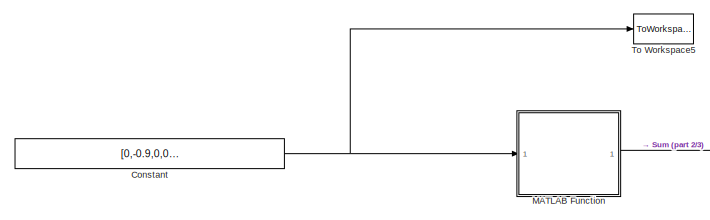
[diagram: root canvas - part 1/3, top center region]
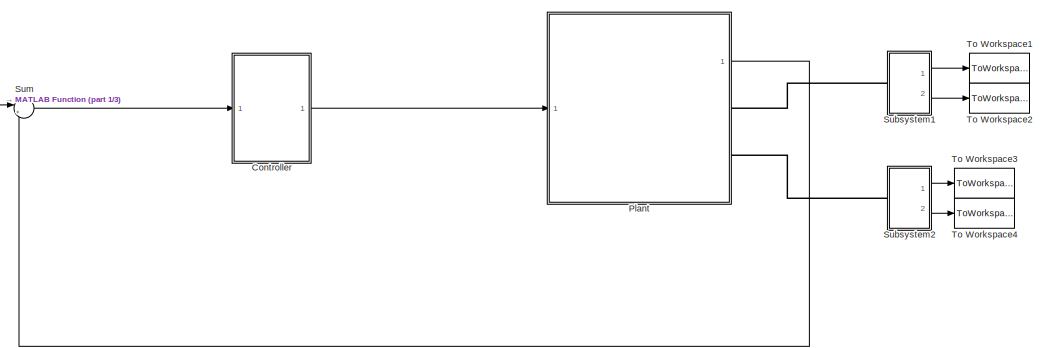
[diagram: root canvas - part 2/3, middle right region]
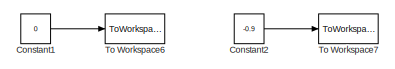
[diagram: root canvas - part 3/3, bottom left region]
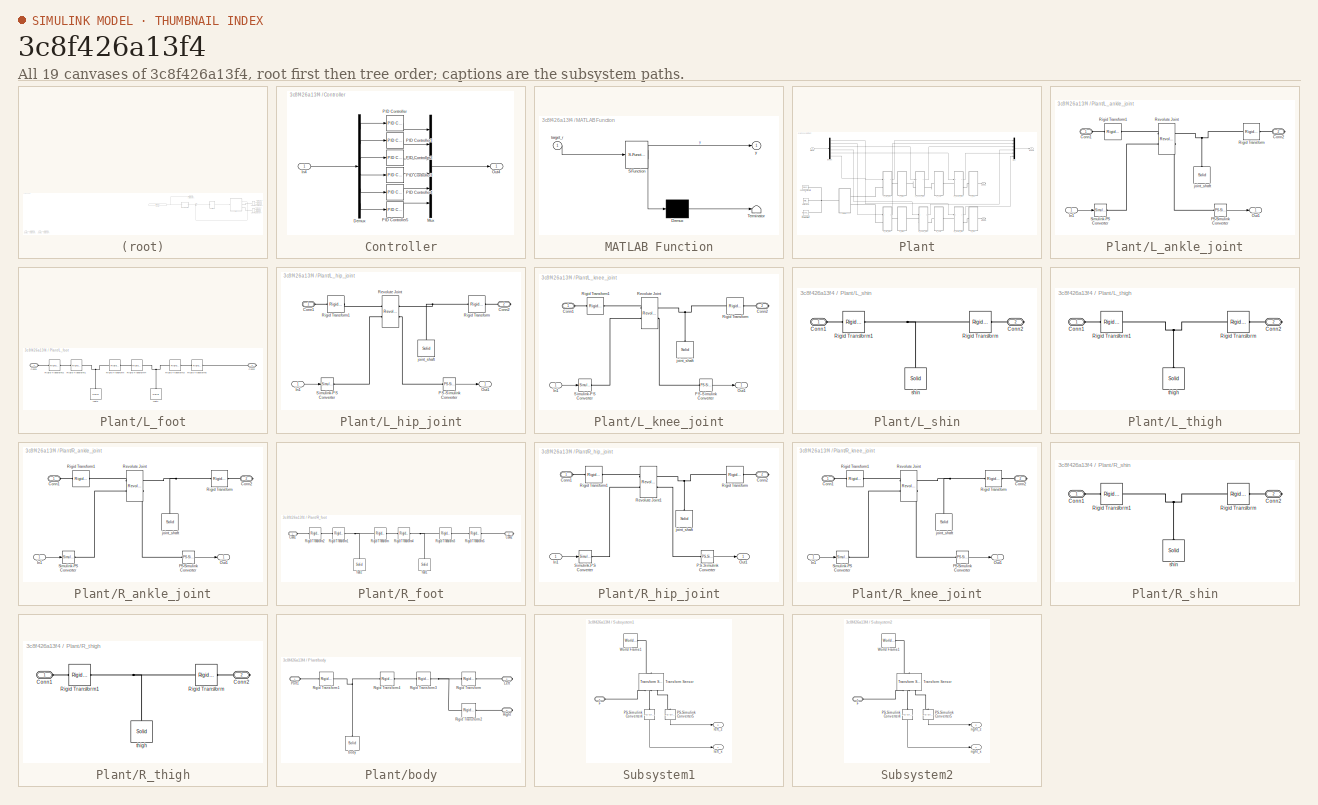
[diagram: thumbnail index - all 19 canvases of the model, root first then tree order]
MODEL slx_3c8f426a13f4
KIND model
CONFIG AbsTol = auto
CONFIG EnableMultiTasking = off
CONFIG FixedStep = auto
CONFIG MaxStep = auto
CONFIG MinStep = auto
CONFIG RelTol = 1e-3
CONFIG SampleTimeConstraint = Unconstrained
CONFIG Solver = VariableStepAuto
CONFIG SolverName = VariableStepAuto
CONFIG StartTime = 0.0
CONFIG StopTime = 5
BLOCK [Constant] Constant
  Value = [0,-0.9,0,0,-0.9,0]
BLOCK [Constant] Constant1
  Value = 0
BLOCK [Constant] Constant2
  Value = -0.9
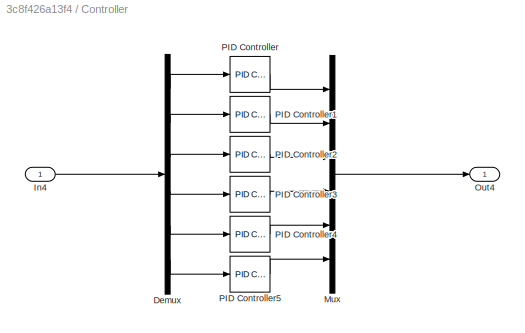
BLOCK [SubSystem] Controller
  Ports = [1, 1]
  RequestExecContextInheritance = off
BLOCK [Demux] Controller/Demux
  DisplayOption = bar
  Outputs = 6
  Ports = [1, 6]
BLOCK [Inport] Controller/In4
  IconDisplay = Port number
BLOCK [Mux] Controller/Mux
  DisplayOption = bar
  Inputs = 6
  Ports = [6, 1]
BLOCK [Outport] Controller/Out4
  IconDisplay = Port number
BLOCK [Reference] Controller/PID Controller  REF=simulink/Continuous/PID Controller
  Ports = [1, 1]
  SourceBlock = simulink/Continuous/PID Controller
  SourceProductBaseCode = SL
  SourceProductName = Simulink
  SourceType = PID 1dof
BLOCK [Reference] Controller/PID Controller1  REF=simulink/Continuous/PID Controller
  Ports = [1, 1]
  SourceBlock = simulink/Continuous/PID Controller
  SourceProductBaseCode = SL
  SourceProductName = Simulink
  SourceType = PID 1dof
BLOCK [Reference] Controller/PID Controller2  REF=simulink/Continuous/PID Controller
  Ports = [1, 1]
  SourceBlock = simulink/Continuous/PID Controller
  SourceProductBaseCode = SL
  SourceProductName = Simulink
  SourceType = PID 1dof
BLOCK [Reference] Controller/PID Controller3  REF=simulink/Continuous/PID Controller
  Ports = [1, 1]
  SourceBlock = simulink/Continuous/PID Controller
  SourceProductBaseCode = SL
  SourceProductName = Simulink
  SourceType = PID 1dof
BLOCK [Reference] Controller/PID Controller4  REF=simulink/Continuous/PID Controller
  Ports = [1, 1]
  SourceBlock = simulink/Continuous/PID Controller
  SourceProductBaseCode = SL
  SourceProductName = Simulink
  SourceType = PID 1dof
BLOCK [Reference] Controller/PID Controller5  REF=simulink/Continuous/PID Controller
  Ports = [1, 1]
  SourceBlock = simulink/Continuous/PID Controller
  SourceProductBaseCode = SL
  SourceProductName = Simulink
  SourceType = PID 1dof
BLOCK [SubSystem] MATLAB Function
  ErrorFcn = Stateflow.Translate.translate
  PermitHierarchicalResolution = ExplicitOnly
  Ports = [1, 1]
  RequestExecContextInheritance = off
  SFBlockType = MATLAB Function
  TreatAsAtomicUnit = on
BLOCK [Demux] MATLAB Function/ Demux 
  Outputs = 1
  Ports = [1, 1]
BLOCK [S-Function] MATLAB Function/ SFunction 
  EnableBusSupport = on
  FunctionName = sf_sfun
  PortCounts = [1 2]
  Ports = [1, 2]
  SFcnIsStateOwnerBlock = off
  SFunctionDeploymentMode = off
  Tag = Stateflow S-Function Twoleg_Sim 2
BLOCK [Terminator] MATLAB Function/ Terminator 
BLOCK [Inport] MATLAB Function/target_r
  IconDisplay = Port number
BLOCK [Outport] MATLAB Function/y
  IconDisplay = Port number
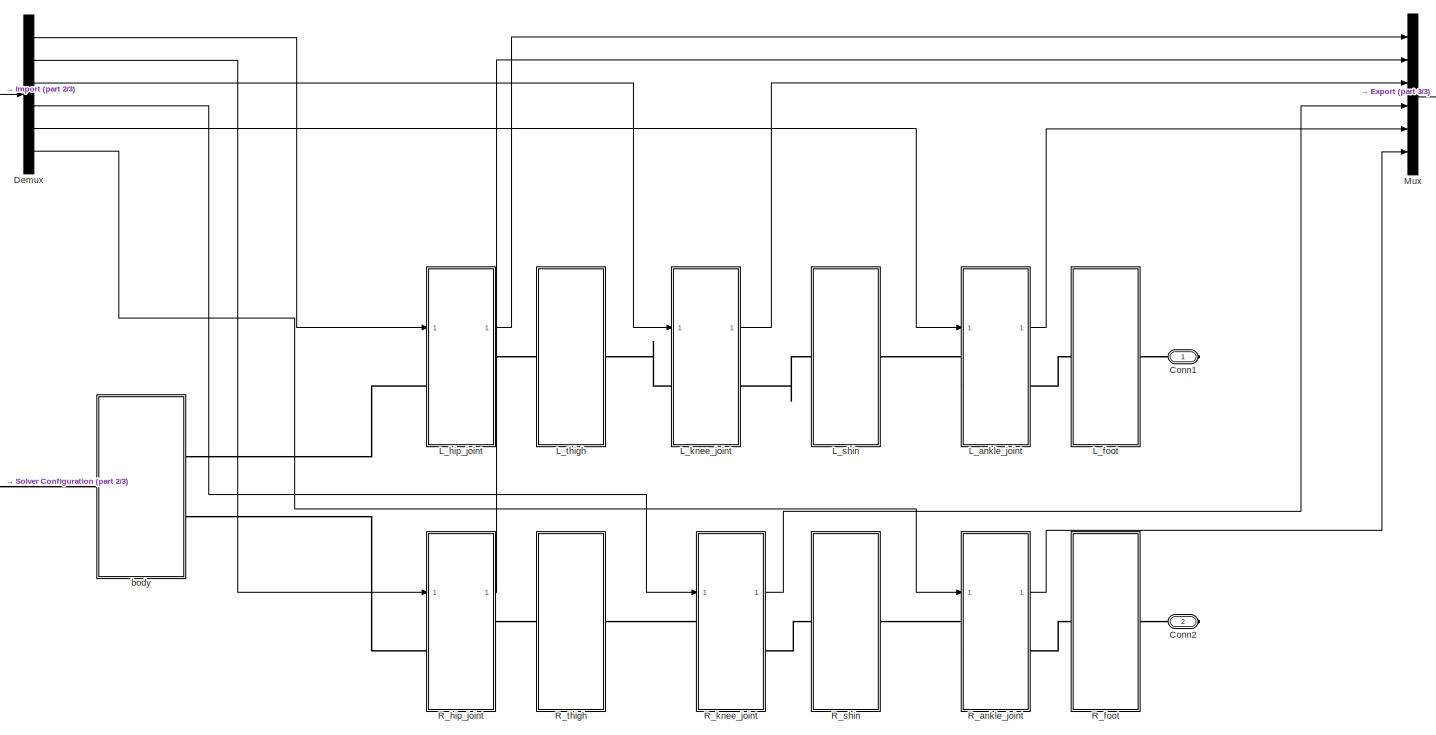
[diagram: Plant - part 1/3, most of the canvas]
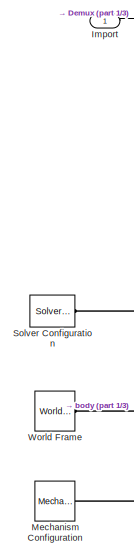
[diagram: Plant - part 2/3, middle left region]
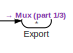
[diagram: Plant - part 3/3, top right region]
BLOCK [SubSystem] Plant
  Ports = [1, 1, 0, 0, 0, 0, 2]
  RequestExecContextInheritance = off
BLOCK [PMIOPort] Plant/Conn1
  Side = Right
BLOCK [PMIOPort] Plant/Conn2
  Port = 2
  Side = Right
BLOCK [Demux] Plant/Demux
  DisplayOption = bar
  Outputs = 6
  Ports = [1, 6]
BLOCK [Outport] Plant/Export
  IconDisplay = Port number
BLOCK [Inport] Plant/Import
  IconDisplay = Port number
BLOCK [SubSystem] Plant/L_ankle_joint
  Ports = [1, 1, 0, 0, 0, 1, 1]
  RequestExecContextInheritance = off
BLOCK [PMIOPort] Plant/L_ankle_joint/Conn1
  Side = Left
BLOCK [PMIOPort] Plant/L_ankle_joint/Conn2
  Port = 2
  Side = Right
BLOCK [Inport] Plant/L_ankle_joint/In1
  IconDisplay = Port number
BLOCK [Outport] Plant/L_ankle_joint/Out1
  IconDisplay = Port number
BLOCK [Reference] Plant/L_ankle_joint/PS-Simulink Converter  REF=nesl_utility/PS-Simulink
Converter
  Ports = [0, 1, 0, 0, 0, 1]
  SourceBlock = nesl_utility/PS-Simulink\nConverter
  SourceProductBaseCode = SS
  SourceProductName = Simscape
  SourceType = PS-Simulink\nConverter
BLOCK [Reference] Plant/L_ankle_joint/Revolute Joint  REF=sm_lib/Joints/Revolute Joint
  Ports = [0, 0, 0, 0, 0, 2, 2]
  SourceBlock = sm_lib/Joints/Revolute Joint
  SourceProductBaseCode = MS
  SourceProductName = Simscape Multibody
  SourceType = Revolute Joint
BLOCK [Reference] Plant/L_ankle_joint/Rigid Transform  REF=sm_lib/Frames and
Transforms/Rigid
Transform
  Ports = [0, 0, 0, 0, 0, 1, 1]
  SourceBlock = sm_lib/Frames and\nTransforms/Rigid\nTransform
  SourceProductBaseCode = MS
  SourceProductName = Simscape Multibody
  SourceType = Rigid\nTransform
BLOCK [Reference] Plant/L_ankle_joint/Rigid Transform1  REF=sm_lib/Frames and
Transforms/Rigid
Transform
  Ports = [0, 0, 0, 0, 0, 1, 1]
  SourceBlock = sm_lib/Frames and\nTransforms/Rigid\nTransform
  SourceProductBaseCode = MS
  SourceProductName = Simscape Multibody
  SourceType = Rigid\nTransform
BLOCK [Reference] Plant/L_ankle_joint/Simulink-PS Converter  REF=nesl_utility/Simulink-PS
Converter
  Ports = [1, 0, 0, 0, 0, 0, 1]
  SourceBlock = nesl_utility/Simulink-PS\nConverter
  SourceProductBaseCode = SS
  SourceProductName = Simscape
  SourceType = Simulink-PS\nConverter
BLOCK [Reference] Plant/L_ankle_joint/joint_shaft  REF=sm_lib/Body Elements/Solid
  Ports = [0, 0, 0, 0, 0, 0, 1]
  SourceBlock = sm_lib/Body Elements/Solid
  SourceProductBaseCode = MS
  SourceProductName = Simscape Multibody
  SourceType = Solid
BLOCK [SubSystem] Plant/L_foot
  Ports = [0, 0, 0, 0, 0, 1, 1]
  RequestExecContextInheritance = off
BLOCK [PMIOPort] Plant/L_foot/Conn1
  Side = Left
BLOCK [PMIOPort] Plant/L_foot/Conn2
  Port = 2
  Side = Right
BLOCK [Reference] Plant/L_foot/Rigid Transform  REF=sm_lib/Frames and
Transforms/Rigid
Transform
  Ports = [0, 0, 0, 0, 0, 1, 1]
  SourceBlock = sm_lib/Frames and\nTransforms/Rigid\nTransform
  SourceProductBaseCode = MS
  SourceProductName = Simscape Multibody
  SourceType = Rigid\nTransform
BLOCK [Reference] Plant/L_foot/Rigid Transform1  REF=sm_lib/Frames and
Transforms/Rigid
Transform
  Ports = [0, 0, 0, 0, 0, 1, 1]
  SourceBlock = sm_lib/Frames and\nTransforms/Rigid\nTransform
  SourceProductBaseCode = MS
  SourceProductName = Simscape Multibody
  SourceType = Rigid\nTransform
BLOCK [Reference] Plant/L_foot/Rigid Transform2  REF=sm_lib/Frames and
Transforms/Rigid
Transform
  Ports = [0, 0, 0, 0, 0, 1, 1]
  SourceBlock = sm_lib/Frames and\nTransforms/Rigid\nTransform
  SourceProductBaseCode = MS
  SourceProductName = Simscape Multibody
  SourceType = Rigid\nTransform
BLOCK [Reference] Plant/L_foot/Rigid Transform3  REF=sm_lib/Frames and
Transforms/Rigid
Transform
  Ports = [0, 0, 0, 0, 0, 1, 1]
  SourceBlock = sm_lib/Frames and\nTransforms/Rigid\nTransform
  SourceProductBaseCode = MS
  SourceProductName = Simscape Multibody
  SourceType = Rigid\nTransform
BLOCK [Reference] Plant/L_foot/Rigid Transform4  REF=sm_lib/Frames and
Transforms/Rigid
Transform
  Ports = [0, 0, 0, 0, 0, 1, 1]
  SourceBlock = sm_lib/Frames and\nTransforms/Rigid\nTransform
  SourceProductBaseCode = MS
  SourceProductName = Simscape Multibody
  SourceType = Rigid\nTransform
BLOCK [Reference] Plant/L_foot/Rigid Transform5  REF=sm_lib/Frames and
Transforms/Rigid
Transform
  Ports = [0, 0, 0, 0, 0, 1, 1]
  SourceBlock = sm_lib/Frames and\nTransforms/Rigid\nTransform
  SourceProductBaseCode = MS
  SourceProductName = Simscape Multibody
  SourceType = Rigid\nTransform
BLOCK [Reference] Plant/L_foot/foot1  REF=sm_lib/Body Elements/Solid
  Ports = [0, 0, 0, 0, 0, 0, 1]
  SourceBlock = sm_lib/Body Elements/Solid
  SourceProductBaseCode = MS
  SourceProductName = Simscape Multibody
  SourceType = Solid
BLOCK [Reference] Plant/L_foot/foot2  REF=sm_lib/Body Elements/Solid
  Ports = [0, 0, 0, 0, 0, 0, 1]
  SourceBlock = sm_lib/Body Elements/Solid
  SourceProductBaseCode = MS
  SourceProductName = Simscape Multibody
  SourceType = Solid
BLOCK [SubSystem] Plant/L_hip_joint
  Ports = [1, 1, 0, 0, 0, 1, 1]
  RequestExecContextInheritance = off
BLOCK [PMIOPort] Plant/L_hip_joint/Conn1
  Side = Left
BLOCK [PMIOPort] Plant/L_hip_joint/Conn2
  Port = 2
  Side = Right
BLOCK [Inport] Plant/L_hip_joint/In1
  IconDisplay = Port number
BLOCK [Outport] Plant/L_hip_joint/Out1
  IconDisplay = Port number
BLOCK [Reference] Plant/L_hip_joint/PS-Simulink Converter  REF=nesl_utility/PS-Simulink
Converter
  Ports = [0, 1, 0, 0, 0, 1]
  SourceBlock = nesl_utility/PS-Simulink\nConverter
  SourceProductBaseCode = SS
  SourceProductName = Simscape
  SourceType = PS-Simulink\nConverter
BLOCK [Reference] Plant/L_hip_joint/Revolute Joint  REF=sm_lib/Joints/Revolute Joint
  Ports = [0, 0, 0, 0, 0, 2, 2]
  SourceBlock = sm_lib/Joints/Revolute Joint
  SourceProductBaseCode = MS
  SourceProductName = Simscape Multibody
  SourceType = Revolute Joint
BLOCK [Reference] Plant/L_hip_joint/Rigid Transform  REF=sm_lib/Frames and
Transforms/Rigid
Transform
  Ports = [0, 0, 0, 0, 0, 1, 1]
  SourceBlock = sm_lib/Frames and\nTransforms/Rigid\nTransform
  SourceProductBaseCode = MS
  SourceProductName = Simscape Multibody
  SourceType = Rigid\nTransform
BLOCK [Reference] Plant/L_hip_joint/Rigid Transform1  REF=sm_lib/Frames and
Transforms/Rigid
Transform
  Ports = [0, 0, 0, 0, 0, 1, 1]
  SourceBlock = sm_lib/Frames and\nTransforms/Rigid\nTransform
  SourceProductBaseCode = MS
  SourceProductName = Simscape Multibody
  SourceType = Rigid\nTransform
BLOCK [Reference] Plant/L_hip_joint/Simulink-PS Converter  REF=nesl_utility/Simulink-PS
Converter
  Ports = [1, 0, 0, 0, 0, 0, 1]
  SourceBlock = nesl_utility/Simulink-PS\nConverter
  SourceProductBaseCode = SS
  SourceProductName = Simscape
  SourceType = Simulink-PS\nConverter
BLOCK [Reference] Plant/L_hip_joint/joint_shaft  REF=sm_lib/Body Elements/Solid
  Ports = [0, 0, 0, 0, 0, 0, 1]
  SourceBlock = sm_lib/Body Elements/Solid
  SourceProductBaseCode = MS
  SourceProductName = Simscape Multibody
  SourceType = Solid
BLOCK [SubSystem] Plant/L_knee_joint
  Ports = [1, 1, 0, 0, 0, 1, 1]
  RequestExecContextInheritance = off
BLOCK [PMIOPort] Plant/L_knee_joint/Conn1
  Side = Left
BLOCK [PMIOPort] Plant/L_knee_joint/Conn2
  Port = 2
  Side = Right
BLOCK [Inport] Plant/L_knee_joint/In1
  IconDisplay = Port number
BLOCK [Outport] Plant/L_knee_joint/Out1
  IconDisplay = Port number
BLOCK [Reference] Plant/L_knee_joint/PS-Simulink Converter  REF=nesl_utility/PS-Simulink
Converter
  Ports = [0, 1, 0, 0, 0, 1]
  SourceBlock = nesl_utility/PS-Simulink\nConverter
  SourceProductBaseCode = SS
  SourceProductName = Simscape
  SourceType = PS-Simulink\nConverter
BLOCK [Reference] Plant/L_knee_joint/Revolute Joint  REF=sm_lib/Joints/Revolute Joint
  Ports = [0, 0, 0, 0, 0, 2, 2]
  SourceBlock = sm_lib/Joints/Revolute Joint
  SourceProductBaseCode = MS
  SourceProductName = Simscape Multibody
  SourceType = Revolute Joint
BLOCK [Reference] Plant/L_knee_joint/Rigid Transform  REF=sm_lib/Frames and
Transforms/Rigid
Transform
  Ports = [0, 0, 0, 0, 0, 1, 1]
  SourceBlock = sm_lib/Frames and\nTransforms/Rigid\nTransform
  SourceProductBaseCode = MS
  SourceProductName = Simscape Multibody
  SourceType = Rigid\nTransform
BLOCK [Reference] Plant/L_knee_joint/Rigid Transform1  REF=sm_lib/Frames and
Transforms/Rigid
Transform
  Ports = [0, 0, 0, 0, 0, 1, 1]
  SourceBlock = sm_lib/Frames and\nTransforms/Rigid\nTransform
  SourceProductBaseCode = MS
  SourceProductName = Simscape Multibody
  SourceType = Rigid\nTransform
BLOCK [Reference] Plant/L_knee_joint/Simulink-PS Converter  REF=nesl_utility/Simulink-PS
Converter
  Ports = [1, 0, 0, 0, 0, 0, 1]
  SourceBlock = nesl_utility/Simulink-PS\nConverter
  SourceProductBaseCode = SS
  SourceProductName = Simscape
  SourceType = Simulink-PS\nConverter
BLOCK [Reference] Plant/L_knee_joint/joint_shaft  REF=sm_lib/Body Elements/Solid
  Ports = [0, 0, 0, 0, 0, 0, 1]
  SourceBlock = sm_lib/Body Elements/Solid
  SourceProductBaseCode = MS
  SourceProductName = Simscape Multibody
  SourceType = Solid
BLOCK [SubSystem] Plant/L_shin
  Ports = [0, 0, 0, 0, 0, 1, 1]
  RequestExecContextInheritance = off
BLOCK [PMIOPort] Plant/L_shin/Conn1
  Side = Left
BLOCK [PMIOPort] Plant/L_shin/Conn2
  Port = 2
  Side = Right
BLOCK [Reference] Plant/L_shin/Rigid Transform  REF=sm_lib/Frames and
Transforms/Rigid
Transform
  Ports = [0, 0, 0, 0, 0, 1, 1]
  SourceBlock = sm_lib/Frames and\nTransforms/Rigid\nTransform
  SourceProductBaseCode = MS
  SourceProductName = Simscape Multibody
  SourceType = Rigid\nTransform
BLOCK [Reference] Plant/L_shin/Rigid Transform1  REF=sm_lib/Frames and
Transforms/Rigid
Transform
  Ports = [0, 0, 0, 0, 0, 1, 1]
  SourceBlock = sm_lib/Frames and\nTransforms/Rigid\nTransform
  SourceProductBaseCode = MS
  SourceProductName = Simscape Multibody
  SourceType = Rigid\nTransform
BLOCK [Reference] Plant/L_shin/shin  REF=sm_lib/Body Elements/Solid
  Ports = [0, 0, 0, 0, 0, 0, 1]
  SourceBlock = sm_lib/Body Elements/Solid
  SourceProductBaseCode = MS
  SourceProductName = Simscape Multibody
  SourceType = Solid
BLOCK [SubSystem] Plant/L_thigh
  Ports = [0, 0, 0, 0, 0, 1, 1]
  RequestExecContextInheritance = off
BLOCK [PMIOPort] Plant/L_thigh/Conn1
  Side = Left
BLOCK [PMIOPort] Plant/L_thigh/Conn2
  Port = 2
  Side = Right
BLOCK [Reference] Plant/L_thigh/Rigid Transform  REF=sm_lib/Frames and
Transforms/Rigid
Transform
  Ports = [0, 0, 0, 0, 0, 1, 1]
  SourceBlock = sm_lib/Frames and\nTransforms/Rigid\nTransform
  SourceProductBaseCode = MS
  SourceProductName = Simscape Multibody
  SourceType = Rigid\nTransform
BLOCK [Reference] Plant/L_thigh/Rigid Transform1  REF=sm_lib/Frames and
Transforms/Rigid
Transform
  Ports = [0, 0, 0, 0, 0, 1, 1]
  SourceBlock = sm_lib/Frames and\nTransforms/Rigid\nTransform
  SourceProductBaseCode = MS
  SourceProductName = Simscape Multibody
  SourceType = Rigid\nTransform
BLOCK [Reference] Plant/L_thigh/thigh  REF=sm_lib/Body Elements/Solid
  Ports = [0, 0, 0, 0, 0, 0, 1]
  SourceBlock = sm_lib/Body Elements/Solid
  SourceProductBaseCode = MS
  SourceProductName = Simscape Multibody
  SourceType = Solid
BLOCK [Reference] Plant/Mechanism Configuration  REF=sm_lib/Utilities/Mechanism
Configuration
  Ports = [0, 0, 0, 0, 0, 0, 1]
  SourceBlock = sm_lib/Utilities/Mechanism\nConfiguration
  SourceProductBaseCode = MS
  SourceProductName = Simscape Multibody
  SourceType = Mechanism\nConfiguration
BLOCK [Mux] Plant/Mux
  DisplayOption = bar
  Inputs = 6
  Ports = [6, 1]
BLOCK [SubSystem] Plant/R_ankle_joint
  Ports = [1, 1, 0, 0, 0, 1, 1]
  RequestExecContextInheritance = off
BLOCK [PMIOPort] Plant/R_ankle_joint/Conn1
  Side = Left
BLOCK [PMIOPort] Plant/R_ankle_joint/Conn2
  Port = 2
  Side = Right
BLOCK [Inport] Plant/R_ankle_joint/In1
  IconDisplay = Port number
BLOCK [Outport] Plant/R_ankle_joint/Out1
  IconDisplay = Port number
BLOCK [Reference] Plant/R_ankle_joint/PS-Simulink Converter  REF=nesl_utility/PS-Simulink
Converter
  Ports = [0, 1, 0, 0, 0, 1]
  SourceBlock = nesl_utility/PS-Simulink\nConverter
  SourceProductBaseCode = SS
  SourceProductName = Simscape
  SourceType = PS-Simulink\nConverter
BLOCK [Reference] Plant/R_ankle_joint/Revolute Joint  REF=sm_lib/Joints/Revolute Joint
  Ports = [0, 0, 0, 0, 0, 2, 2]
  SourceBlock = sm_lib/Joints/Revolute Joint
  SourceProductBaseCode = MS
  SourceProductName = Simscape Multibody
  SourceType = Revolute Joint
BLOCK [Reference] Plant/R_ankle_joint/Rigid Transform  REF=sm_lib/Frames and
Transforms/Rigid
Transform
  Ports = [0, 0, 0, 0, 0, 1, 1]
  SourceBlock = sm_lib/Frames and\nTransforms/Rigid\nTransform
  SourceProductBaseCode = MS
  SourceProductName = Simscape Multibody
  SourceType = Rigid\nTransform
BLOCK [Reference] Plant/R_ankle_joint/Rigid Transform1  REF=sm_lib/Frames and
Transforms/Rigid
Transform
  Ports = [0, 0, 0, 0, 0, 1, 1]
  SourceBlock = sm_lib/Frames and\nTransforms/Rigid\nTransform
  SourceProductBaseCode = MS
  SourceProductName = Simscape Multibody
  SourceType = Rigid\nTransform
BLOCK [Reference] Plant/R_ankle_joint/Simulink-PS Converter  REF=nesl_utility/Simulink-PS
Converter
  Ports = [1, 0, 0, 0, 0, 0, 1]
  SourceBlock = nesl_utility/Simulink-PS\nConverter
  SourceProductBaseCode = SS
  SourceProductName = Simscape
  SourceType = Simulink-PS\nConverter
BLOCK [Reference] Plant/R_ankle_joint/joint_shaft  REF=sm_lib/Body Elements/Solid
  Ports = [0, 0, 0, 0, 0, 0, 1]
  SourceBlock = sm_lib/Body Elements/Solid
  SourceProductBaseCode = MS
  SourceProductName = Simscape Multibody
  SourceType = Solid
BLOCK [SubSystem] Plant/R_foot
  Ports = [0, 0, 0, 0, 0, 1, 1]
  RequestExecContextInheritance = off
BLOCK [PMIOPort] Plant/R_foot/Conn1
  Side = Left
BLOCK [PMIOPort] Plant/R_foot/Conn2
  Port = 2
  Side = Right
BLOCK [Reference] Plant/R_foot/Rigid Transform  REF=sm_lib/Frames and
Transforms/Rigid
Transform
  Ports = [0, 0, 0, 0, 0, 1, 1]
  SourceBlock = sm_lib/Frames and\nTransforms/Rigid\nTransform
  SourceProductBaseCode = MS
  SourceProductName = Simscape Multibody
  SourceType = Rigid\nTransform
BLOCK [Reference] Plant/R_foot/Rigid Transform1  REF=sm_lib/Frames and
Transforms/Rigid
Transform
  Ports = [0, 0, 0, 0, 0, 1, 1]
  SourceBlock = sm_lib/Frames and\nTransforms/Rigid\nTransform
  SourceProductBaseCode = MS
  SourceProductName = Simscape Multibody
  SourceType = Rigid\nTransform
BLOCK [Reference] Plant/R_foot/Rigid Transform2  REF=sm_lib/Frames and
Transforms/Rigid
Transform
  Ports = [0, 0, 0, 0, 0, 1, 1]
  SourceBlock = sm_lib/Frames and\nTransforms/Rigid\nTransform
  SourceProductBaseCode = MS
  SourceProductName = Simscape Multibody
  SourceType = Rigid\nTransform
BLOCK [Reference] Plant/R_foot/Rigid Transform3  REF=sm_lib/Frames and
Transforms/Rigid
Transform
  Ports = [0, 0, 0, 0, 0, 1, 1]
  SourceBlock = sm_lib/Frames and\nTransforms/Rigid\nTransform
  SourceProductBaseCode = MS
  SourceProductName = Simscape Multibody
  SourceType = Rigid\nTransform
BLOCK [Reference] Plant/R_foot/Rigid Transform4  REF=sm_lib/Frames and
Transforms/Rigid
Transform
  Ports = [0, 0, 0, 0, 0, 1, 1]
  SourceBlock = sm_lib/Frames and\nTransforms/Rigid\nTransform
  SourceProductBaseCode = MS
  SourceProductName = Simscape Multibody
  SourceType = Rigid\nTransform
BLOCK [Reference] Plant/R_foot/Rigid Transform5  REF=sm_lib/Frames and
Transforms/Rigid
Transform
  Ports = [0, 0, 0, 0, 0, 1, 1]
  SourceBlock = sm_lib/Frames and\nTransforms/Rigid\nTransform
  SourceProductBaseCode = MS
  SourceProductName = Simscape Multibody
  SourceType = Rigid\nTransform
BLOCK [Reference] Plant/R_foot/foot1  REF=sm_lib/Body Elements/Solid
  Ports = [0, 0, 0, 0, 0, 0, 1]
  SourceBlock = sm_lib/Body Elements/Solid
  SourceProductBaseCode = MS
  SourceProductName = Simscape Multibody
  SourceType = Solid
BLOCK [Reference] Plant/R_foot/foot2  REF=sm_lib/Body Elements/Solid
  Ports = [0, 0, 0, 0, 0, 0, 1]
  SourceBlock = sm_lib/Body Elements/Solid
  SourceProductBaseCode = MS
  SourceProductName = Simscape Multibody
  SourceType = Solid
BLOCK [SubSystem] Plant/R_hip_joint
  Ports = [1, 1, 0, 0, 0, 1, 1]
  RequestExecContextInheritance = off
BLOCK [PMIOPort] Plant/R_hip_joint/Conn1
  Side = Left
BLOCK [PMIOPort] Plant/R_hip_joint/Conn2
  Port = 2
  Side = Right
BLOCK [Inport] Plant/R_hip_joint/In1
  IconDisplay = Port number
BLOCK [Outport] Plant/R_hip_joint/Out1
  IconDisplay = Port number
BLOCK [Reference] Plant/R_hip_joint/PS-Simulink Converter  REF=nesl_utility/PS-Simulink
Converter
  Ports = [0, 1, 0, 0, 0, 1]
  SourceBlock = nesl_utility/PS-Simulink\nConverter
  SourceProductBaseCode = SS
  SourceProductName = Simscape
  SourceType = PS-Simulink\nConverter
BLOCK [Reference] Plant/R_hip_joint/Revolute Joint1  REF=sm_lib/Joints/Revolute Joint
  Ports = [0, 0, 0, 0, 0, 2, 2]
  SourceBlock = sm_lib/Joints/Revolute Joint
  SourceProductBaseCode = MS
  SourceProductName = Simscape Multibody
  SourceType = Revolute Joint
BLOCK [Reference] Plant/R_hip_joint/Rigid Transform  REF=sm_lib/Frames and
Transforms/Rigid
Transform
  Ports = [0, 0, 0, 0, 0, 1, 1]
  SourceBlock = sm_lib/Frames and\nTransforms/Rigid\nTransform
  SourceProductBaseCode = MS
  SourceProductName = Simscape Multibody
  SourceType = Rigid\nTransform
BLOCK [Reference] Plant/R_hip_joint/Rigid Transform1  REF=sm_lib/Frames and
Transforms/Rigid
Transform
  Ports = [0, 0, 0, 0, 0, 1, 1]
  SourceBlock = sm_lib/Frames and\nTransforms/Rigid\nTransform
  SourceProductBaseCode = MS
  SourceProductName = Simscape Multibody
  SourceType = Rigid\nTransform
BLOCK [Reference] Plant/R_hip_joint/Simulink-PS Converter  REF=nesl_utility/Simulink-PS
Converter
  Ports = [1, 0, 0, 0, 0, 0, 1]
  SourceBlock = nesl_utility/Simulink-PS\nConverter
  SourceProductBaseCode = SS
  SourceProductName = Simscape
  SourceType = Simulink-PS\nConverter
BLOCK [Reference] Plant/R_hip_joint/joint_shaft  REF=sm_lib/Body Elements/Solid
  Ports = [0, 0, 0, 0, 0, 0, 1]
  SourceBlock = sm_lib/Body Elements/Solid
  SourceProductBaseCode = MS
  SourceProductName = Simscape Multibody
  SourceType = Solid
BLOCK [SubSystem] Plant/R_knee_joint
  Ports = [1, 1, 0, 0, 0, 1, 1]
  RequestExecContextInheritance = off
BLOCK [PMIOPort] Plant/R_knee_joint/Conn1
  Side = Left
BLOCK [PMIOPort] Plant/R_knee_joint/Conn2
  Port = 2
  Side = Right
BLOCK [Inport] Plant/R_knee_joint/In1
  IconDisplay = Port number
BLOCK [Outport] Plant/R_knee_joint/Out1
  IconDisplay = Port number
BLOCK [Reference] Plant/R_knee_joint/PS-Simulink Converter  REF=nesl_utility/PS-Simulink
Converter
  Ports = [0, 1, 0, 0, 0, 1]
  SourceBlock = nesl_utility/PS-Simulink\nConverter
  SourceProductBaseCode = SS
  SourceProductName = Simscape
  SourceType = PS-Simulink\nConverter
BLOCK [Reference] Plant/R_knee_joint/Revolute Joint  REF=sm_lib/Joints/Revolute Joint
  Ports = [0, 0, 0, 0, 0, 2, 2]
  SourceBlock = sm_lib/Joints/Revolute Joint
  SourceProductBaseCode = MS
  SourceProductName = Simscape Multibody
  SourceType = Revolute Joint
BLOCK [Reference] Plant/R_knee_joint/Rigid Transform  REF=sm_lib/Frames and
Transforms/Rigid
Transform
  Ports = [0, 0, 0, 0, 0, 1, 1]
  SourceBlock = sm_lib/Frames and\nTransforms/Rigid\nTransform
  SourceProductBaseCode = MS
  SourceProductName = Simscape Multibody
  SourceType = Rigid\nTransform
BLOCK [Reference] Plant/R_knee_joint/Rigid Transform1  REF=sm_lib/Frames and
Transforms/Rigid
Transform
  Ports = [0, 0, 0, 0, 0, 1, 1]
  SourceBlock = sm_lib/Frames and\nTransforms/Rigid\nTransform
  SourceProductBaseCode = MS
  SourceProductName = Simscape Multibody
  SourceType = Rigid\nTransform
BLOCK [Reference] Plant/R_knee_joint/Simulink-PS Converter  REF=nesl_utility/Simulink-PS
Converter
  Ports = [1, 0, 0, 0, 0, 0, 1]
  SourceBlock = nesl_utility/Simulink-PS\nConverter
  SourceProductBaseCode = SS
  SourceProductName = Simscape
  SourceType = Simulink-PS\nConverter
BLOCK [Reference] Plant/R_knee_joint/joint_shaft  REF=sm_lib/Body Elements/Solid
  Ports = [0, 0, 0, 0, 0, 0, 1]
  SourceBlock = sm_lib/Body Elements/Solid
  SourceProductBaseCode = MS
  SourceProductName = Simscape Multibody
  SourceType = Solid
BLOCK [SubSystem] Plant/R_shin
  Ports = [0, 0, 0, 0, 0, 1, 1]
  RequestExecContextInheritance = off
BLOCK [PMIOPort] Plant/R_shin/Conn1
  Side = Left
BLOCK [PMIOPort] Plant/R_shin/Conn2
  Port = 2
  Side = Right
BLOCK [Reference] Plant/R_shin/Rigid Transform  REF=sm_lib/Frames and
Transforms/Rigid
Transform
  Ports = [0, 0, 0, 0, 0, 1, 1]
  SourceBlock = sm_lib/Frames and\nTransforms/Rigid\nTransform
  SourceProductBaseCode = MS
  SourceProductName = Simscape Multibody
  SourceType = Rigid\nTransform
BLOCK [Reference] Plant/R_shin/Rigid Transform1  REF=sm_lib/Frames and
Transforms/Rigid
Transform
  Ports = [0, 0, 0, 0, 0, 1, 1]
  SourceBlock = sm_lib/Frames and\nTransforms/Rigid\nTransform
  SourceProductBaseCode = MS
  SourceProductName = Simscape Multibody
  SourceType = Rigid\nTransform
BLOCK [Reference] Plant/R_shin/shin  REF=sm_lib/Body Elements/Solid
  Ports = [0, 0, 0, 0, 0, 0, 1]
  SourceBlock = sm_lib/Body Elements/Solid
  SourceProductBaseCode = MS
  SourceProductName = Simscape Multibody
  SourceType = Solid
BLOCK [SubSystem] Plant/R_thigh
  Ports = [0, 0, 0, 0, 0, 1, 1]
  RequestExecContextInheritance = off
BLOCK [PMIOPort] Plant/R_thigh/Conn1
  Side = Left
BLOCK [PMIOPort] Plant/R_thigh/Conn2
  Port = 2
  Side = Right
BLOCK [Reference] Plant/R_thigh/Rigid Transform  REF=sm_lib/Frames and
Transforms/Rigid
Transform
  Ports = [0, 0, 0, 0, 0, 1, 1]
  SourceBlock = sm_lib/Frames and\nTransforms/Rigid\nTransform
  SourceProductBaseCode = MS
  SourceProductName = Simscape Multibody
  SourceType = Rigid\nTransform
BLOCK [Reference] Plant/R_thigh/Rigid Transform1  REF=sm_lib/Frames and
Transforms/Rigid
Transform
  Ports = [0, 0, 0, 0, 0, 1, 1]
  SourceBlock = sm_lib/Frames and\nTransforms/Rigid\nTransform
  SourceProductBaseCode = MS
  SourceProductName = Simscape Multibody
  SourceType = Rigid\nTransform
BLOCK [Reference] Plant/R_thigh/thigh  REF=sm_lib/Body Elements/Solid
  Ports = [0, 0, 0, 0, 0, 0, 1]
  SourceBlock = sm_lib/Body Elements/Solid
  SourceProductBaseCode = MS
  SourceProductName = Simscape Multibody
  SourceType = Solid
BLOCK [Reference] Plant/Solver Configuration  REF=nesl_utility/Solver
Configuration
  Ports = [0, 0, 0, 0, 0, 0, 1]
  SourceBlock = nesl_utility/Solver\nConfiguration
  SourceProductBaseCode = SS
  SourceProductName = Simscape
  SourceType = Solver\nConfiguration
BLOCK [Reference] Plant/World Frame  REF=sm_lib/Frames and
Transforms/World Frame
  Ports = [0, 0, 0, 0, 0, 0, 1]
  SourceBlock = sm_lib/Frames and\nTransforms/World Frame
  SourceProductBaseCode = MS
  SourceProductName = Simscape Multibody
  SourceType = World Frame
BLOCK [SubSystem] Plant/body
  Ports = [0, 0, 0, 0, 0, 1, 2]
  RequestExecContextInheritance = off
BLOCK [PMIOPort] Plant/body/Left
  Port = 2
  Side = Right
BLOCK [PMIOPort] Plant/body/Port1
  Side = Left
BLOCK [PMIOPort] Plant/body/Right
  Port = 3
  Side = Right
BLOCK [Reference] Plant/body/Rigid Transform  REF=sm_lib/Frames and
Transforms/Rigid
Transform
  Ports = [0, 0, 0, 0, 0, 1, 1]
  SourceBlock = sm_lib/Frames and\nTransforms/Rigid\nTransform
  SourceProductBaseCode = MS
  SourceProductName = Simscape Multibody
  SourceType = Rigid\nTransform
BLOCK [Reference] Plant/body/Rigid Transform1  REF=sm_lib/Frames and
Transforms/Rigid
Transform
  Ports = [0, 0, 0, 0, 0, 1, 1]
  SourceBlock = sm_lib/Frames and\nTransforms/Rigid\nTransform
  SourceProductBaseCode = MS
  SourceProductName = Simscape Multibody
  SourceType = Rigid\nTransform
BLOCK [Reference] Plant/body/Rigid Transform2  REF=sm_lib/Frames and
Transforms/Rigid
Transform
  Ports = [0, 0, 0, 0, 0, 1, 1]
  SourceBlock = sm_lib/Frames and\nTransforms/Rigid\nTransform
  SourceProductBaseCode = MS
  SourceProductName = Simscape Multibody
  SourceType = Rigid\nTransform
BLOCK [Reference] Plant/body/Rigid Transform3  REF=sm_lib/Frames and
Transforms/Rigid
Transform
  Ports = [0, 0, 0, 0, 0, 1, 1]
  SourceBlock = sm_lib/Frames and\nTransforms/Rigid\nTransform
  SourceProductBaseCode = MS
  SourceProductName = Simscape Multibody
  SourceType = Rigid\nTransform
BLOCK [Reference] Plant/body/Rigid Transform4  REF=sm_lib/Frames and
Transforms/Rigid
Transform
  Ports = [0, 0, 0, 0, 0, 1, 1]
  SourceBlock = sm_lib/Frames and\nTransforms/Rigid\nTransform
  SourceProductBaseCode = MS
  SourceProductName = Simscape Multibody
  SourceType = Rigid\nTransform
BLOCK [Reference] Plant/body/body  REF=sm_lib/Body Elements/Solid
  Ports = [0, 0, 0, 0, 0, 0, 1]
  SourceBlock = sm_lib/Body Elements/Solid
  SourceProductBaseCode = MS
  SourceProductName = Simscape Multibody
  SourceType = Solid
BLOCK [SubSystem] Subsystem1
  Ports = [0, 2, 0, 0, 0, 1]
  RequestExecContextInheritance = off
BLOCK [PMIOPort] Subsystem1/F
  Side = Left
BLOCK [Reference] Subsystem1/PS-Simulink Converter4  REF=nesl_utility/PS-Simulink
Converter
  Ports = [0, 1, 0, 0, 0, 1]
  SourceBlock = nesl_utility/PS-Simulink\nConverter
  SourceProductBaseCode = SS
  SourceProductName = Simscape
  SourceType = PS-Simulink\nConverter
BLOCK [Reference] Subsystem1/PS-Simulink Converter5  REF=nesl_utility/PS-Simulink
Converter
  Ports = [0, 1, 0, 0, 0, 1]
  SourceBlock = nesl_utility/PS-Simulink\nConverter
  SourceProductBaseCode = SS
  SourceProductName = Simscape
  SourceType = PS-Simulink\nConverter
BLOCK [Reference] Subsystem1/Transform Sensor  REF=sm_lib/Frames and
Transforms/Transform
Sensor
  Ports = [0, 0, 0, 0, 0, 1, 3]
  SourceBlock = sm_lib/Frames and\nTransforms/Transform\nSensor
  SourceProductBaseCode = MS
  SourceProductName = Simscape Multibody
  SourceType = Transform\nSensor
BLOCK [Reference] Subsystem1/World Frame1  REF=sm_lib/Frames and
Transforms/World Frame
  Ports = [0, 0, 0, 0, 0, 0, 1]
  SourceBlock = sm_lib/Frames and\nTransforms/World Frame
  SourceProductBaseCode = MS
  SourceProductName = Simscape Multibody
  SourceType = World Frame
BLOCK [Outport] Subsystem1/left_x
  IconDisplay = Port number
BLOCK [Outport] Subsystem1/left_z
  IconDisplay = Port number
  Port = 2
BLOCK [SubSystem] Subsystem2
  Ports = [0, 2, 0, 0, 0, 1]
  RequestExecContextInheritance = off
BLOCK [PMIOPort] Subsystem2/F
  Side = Left
BLOCK [Reference] Subsystem2/PS-Simulink Converter4  REF=nesl_utility/PS-Simulink
Converter
  Ports = [0, 1, 0, 0, 0, 1]
  SourceBlock = nesl_utility/PS-Simulink\nConverter
  SourceProductBaseCode = SS
  SourceProductName = Simscape
  SourceType = PS-Simulink\nConverter
BLOCK [Reference] Subsystem2/PS-Simulink Converter5  REF=nesl_utility/PS-Simulink
Converter
  Ports = [0, 1, 0, 0, 0, 1]
  SourceBlock = nesl_utility/PS-Simulink\nConverter
  SourceProductBaseCode = SS
  SourceProductName = Simscape
  SourceType = PS-Simulink\nConverter
BLOCK [Reference] Subsystem2/Transform Sensor  REF=sm_lib/Frames and
Transforms/Transform
Sensor
  Ports = [0, 0, 0, 0, 0, 1, 3]
  SourceBlock = sm_lib/Frames and\nTransforms/Transform\nSensor
  SourceProductBaseCode = MS
  SourceProductName = Simscape Multibody
  SourceType = Transform\nSensor
BLOCK [Reference] Subsystem2/World Frame1  REF=sm_lib/Frames and
Transforms/World Frame
  Ports = [0, 0, 0, 0, 0, 0, 1]
  SourceBlock = sm_lib/Frames and\nTransforms/World Frame
  SourceProductBaseCode = MS
  SourceProductName = Simscape Multibody
  SourceType = World Frame
BLOCK [Outport] Subsystem2/right_x
  IconDisplay = Port number
BLOCK [Outport] Subsystem2/right_z
  IconDisplay = Port number
  Port = 2
BLOCK [Sum] Sum
  IconShape = round
  InputSameDT = off
  Inputs = |+-
  OutDataTypeStr = Inherit: Inherit via internal rule
  Ports = [2, 1]
  SaturateOnIntegerOverflow = off
BLOCK [ToWorkspace] To Workspace1
  FixptAsFi = on
  MaxDataPoints = inf
  Ports = [1]
  SampleTime = -1
  SaveFormat = Timeseries
  VariableName = left_x
BLOCK [ToWorkspace] To Workspace2
  FixptAsFi = on
  MaxDataPoints = inf
  Ports = [1]
  SampleTime = -1
  SaveFormat = Timeseries
  VariableName = left_z
BLOCK [ToWorkspace] To Workspace3
  FixptAsFi = on
  MaxDataPoints = inf
  Ports = [1]
  SampleTime = -1
  SaveFormat = Timeseries
  VariableName = right_x
BLOCK [ToWorkspace] To Workspace4
  FixptAsFi = on
  MaxDataPoints = inf
  Ports = [1]
  SampleTime = -1
  SaveFormat = Timeseries
  VariableName = right_z
BLOCK [ToWorkspace] To Workspace5
  FixptAsFi = on
  MaxDataPoints = inf
  Ports = [1]
  SampleTime = -1
  SaveFormat = Timeseries
  VariableName = target
BLOCK [ToWorkspace] To Workspace6
  FixptAsFi = on
  MaxDataPoints = inf
  Ports = [1]
  SampleTime = -1
  SaveFormat = Timeseries
  VariableName = target_x
BLOCK [ToWorkspace] To Workspace7
  FixptAsFi = on
  MaxDataPoints = inf
  Ports = [1]
  SampleTime = -1
  SaveFormat = Timeseries
  VariableName = target_z
LINE Constant1:1 -> To Workspace6:1
LINE Constant2:1 -> To Workspace7:1
NET Constant:1 -> MATLAB Function:1, To Workspace5:1
LINE Controller/Demux:1 -> Controller/PID Controller:1
LINE Controller/Demux:2 -> Controller/PID Controller1:1
LINE Controller/Demux:3 -> Controller/PID Controller2:1
LINE Controller/Demux:4 -> Controller/PID Controller3:1
LINE Controller/Demux:5 -> Controller/PID Controller4:1
LINE Controller/Demux:6 -> Controller/PID Controller5:1
LINE Controller/In4:1 -> Controller/Demux:1
LINE Controller/Mux:1 -> Controller/Out4:1
LINE Controller/PID Controller1:1 -> Controller/Mux:2
LINE Controller/PID Controller2:1 -> Controller/Mux:3
LINE Controller/PID Controller3:1 -> Controller/Mux:4
LINE Controller/PID Controller4:1 -> Controller/Mux:5
LINE Controller/PID Controller5:1 -> Controller/Mux:6
LINE Controller/PID Controller:1 -> Controller/Mux:1
LINE Controller:1 -> Plant:1
LINE MATLAB Function:1 -> Sum:1
LINE Plant/Demux:1 -> Plant/L_hip_joint:1
LINE Plant/Demux:2 -> Plant/R_hip_joint:1
LINE Plant/Demux:3 -> Plant/L_knee_joint:1
LINE Plant/Demux:4 -> Plant/R_knee_joint:1
LINE Plant/Demux:5 -> Plant/L_ankle_joint:1
LINE Plant/Demux:6 -> Plant/R_ankle_joint:1
LINE Plant/Import:1 -> Plant/Demux:1
LINE Plant/L_ankle_joint/In1:1 -> Plant/L_ankle_joint/Simulink-PS Converter:1
LINE Plant/L_ankle_joint/PS-Simulink Converter:1 -> Plant/L_ankle_joint/Out1:1
LINE Plant/L_ankle_joint:1 -> Plant/Mux:5
LINE Plant/L_hip_joint/In1:1 -> Plant/L_hip_joint/Simulink-PS Converter:1
LINE Plant/L_hip_joint/PS-Simulink Converter:1 -> Plant/L_hip_joint/Out1:1
LINE Plant/L_hip_joint:1 -> Plant/Mux:1
LINE Plant/L_knee_joint/In1:1 -> Plant/L_knee_joint/Simulink-PS Converter:1
LINE Plant/L_knee_joint/PS-Simulink Converter:1 -> Plant/L_knee_joint/Out1:1
LINE Plant/L_knee_joint:1 -> Plant/Mux:3
LINE Plant/Mux:1 -> Plant/Export:1
LINE Plant/R_ankle_joint/In1:1 -> Plant/R_ankle_joint/Simulink-PS Converter:1
LINE Plant/R_ankle_joint/PS-Simulink Converter:1 -> Plant/R_ankle_joint/Out1:1
LINE Plant/R_ankle_joint:1 -> Plant/Mux:6
LINE Plant/R_hip_joint/In1:1 -> Plant/R_hip_joint/Simulink-PS Converter:1
LINE Plant/R_hip_joint/PS-Simulink Converter:1 -> Plant/R_hip_joint/Out1:1
LINE Plant/R_hip_joint:1 -> Plant/Mux:2
LINE Plant/R_knee_joint/In1:1 -> Plant/R_knee_joint/Simulink-PS Converter:1
LINE Plant/R_knee_joint/PS-Simulink Converter:1 -> Plant/R_knee_joint/Out1:1
LINE Plant/R_knee_joint:1 -> Plant/Mux:4
LINE Plant:1 -> Sum:2
LINE Subsystem1/PS-Simulink Converter4:1 -> Subsystem1/left_x:1
LINE Subsystem1/PS-Simulink Converter5:1 -> Subsystem1/left_z:1
LINE Subsystem1:1 -> To Workspace1:1
LINE Subsystem1:2 -> To Workspace2:1
LINE Subsystem2/PS-Simulink Converter4:1 -> Subsystem2/right_x:1
LINE Subsystem2/PS-Simulink Converter5:1 -> Subsystem2/right_z:1
LINE Subsystem2:1 -> To Workspace3:1
LINE Subsystem2:2 -> To Workspace4:1
LINE Sum:1 -> Controller:1
PLINE Plant/Conn1:RConn1 -- Plant/L_foot:RConn1
PLINE Plant/Conn2:RConn1 -- Plant/R_foot:RConn1
PLINE Plant/L_ankle_joint/Conn1:RConn1 -- Plant/L_ankle_joint/Rigid Transform1:RConn1
PLINE Plant/L_ankle_joint/Conn2:RConn1 -- Plant/L_ankle_joint/Rigid Transform:RConn1
PLINE Plant/L_ankle_joint/PS-Simulink Converter:LConn1 -- Plant/L_ankle_joint/Revolute Joint:RConn2
PLINE Plant/L_ankle_joint/Revolute Joint:LConn1 -- Plant/L_ankle_joint/Rigid Transform1:LConn1
PLINE Plant/L_ankle_joint/Revolute Joint:LConn2 -- Plant/L_ankle_joint/Simulink-PS Converter:RConn1
PNET net1: Plant/L_ankle_joint/Revolute Joint:RConn1 -- Plant/L_ankle_joint/Rigid Transform:LConn1 -- Plant/L_ankle_joint/joint_shaft:RConn1
PLINE Plant/L_ankle_joint:LConn1 -- Plant/L_shin:RConn1
PLINE Plant/L_ankle_joint:RConn1 -- Plant/L_foot:LConn1
PLINE Plant/L_foot/Conn1:RConn1 -- Plant/L_foot/Rigid Transform2:RConn1
PLINE Plant/L_foot/Conn2:RConn1 -- Plant/L_foot/Rigid Transform5:RConn1
PNET net2: Plant/L_foot/Rigid Transform1:LConn1 -- Plant/L_foot/Rigid Transform:LConn1 -- Plant/L_foot/foot2:RConn1
PLINE Plant/L_foot/Rigid Transform1:RConn1 -- Plant/L_foot/Rigid Transform2:LConn1
PNET net3: Plant/L_foot/Rigid Transform3:LConn1 -- Plant/L_foot/Rigid Transform4:LConn1 -- Plant/L_foot/foot1:RConn1
PLINE Plant/L_foot/Rigid Transform3:RConn1 -- Plant/L_foot/Rigid Transform5:LConn1
PLINE Plant/L_foot/Rigid Transform4:RConn1 -- Plant/L_foot/Rigid Transform:RConn1
PLINE Plant/L_hip_joint/Conn1:RConn1 -- Plant/L_hip_joint/Rigid Transform1:RConn1
PLINE Plant/L_hip_joint/Conn2:RConn1 -- Plant/L_hip_joint/Rigid Transform:RConn1
PLINE Plant/L_hip_joint/PS-Simulink Converter:LConn1 -- Plant/L_hip_joint/Revolute Joint:RConn2
PLINE Plant/L_hip_joint/Revolute Joint:LConn1 -- Plant/L_hip_joint/Rigid Transform1:LConn1
PLINE Plant/L_hip_joint/Revolute Joint:LConn2 -- Plant/L_hip_joint/Simulink-PS Converter:RConn1
PNET net4: Plant/L_hip_joint/Revolute Joint:RConn1 -- Plant/L_hip_joint/Rigid Transform:LConn1 -- Plant/L_hip_joint/joint_shaft:RConn1
PLINE Plant/L_hip_joint:LConn1 -- Plant/body:RConn1
PLINE Plant/L_hip_joint:RConn1 -- Plant/L_thigh:LConn1
PLINE Plant/L_knee_joint/Conn1:RConn1 -- Plant/L_knee_joint/Rigid Transform1:RConn1
PLINE Plant/L_knee_joint/Conn2:RConn1 -- Plant/L_knee_joint/Rigid Transform:RConn1
PLINE Plant/L_knee_joint/PS-Simulink Converter:LConn1 -- Plant/L_knee_joint/Revolute Joint:RConn2
PLINE Plant/L_knee_joint/Revolute Joint:LConn1 -- Plant/L_knee_joint/Rigid Transform1:LConn1
PLINE Plant/L_knee_joint/Revolute Joint:LConn2 -- Plant/L_knee_joint/Simulink-PS Converter:RConn1
PNET net5: Plant/L_knee_joint/Revolute Joint:RConn1 -- Plant/L_knee_joint/Rigid Transform:LConn1 -- Plant/L_knee_joint/joint_shaft:RConn1
PLINE Plant/L_knee_joint:LConn1 -- Plant/L_thigh:RConn1
PLINE Plant/L_knee_joint:RConn1 -- Plant/L_shin:LConn1
PLINE Plant/L_shin/Conn1:RConn1 -- Plant/L_shin/Rigid Transform1:RConn1
PLINE Plant/L_shin/Conn2:RConn1 -- Plant/L_shin/Rigid Transform:RConn1
PNET net6: Plant/L_shin/Rigid Transform1:LConn1 -- Plant/L_shin/Rigid Transform:LConn1 -- Plant/L_shin/shin:RConn1
PLINE Plant/L_thigh/Conn1:RConn1 -- Plant/L_thigh/Rigid Transform1:RConn1
PLINE Plant/L_thigh/Conn2:RConn1 -- Plant/L_thigh/Rigid Transform:RConn1
PNET net7: Plant/L_thigh/Rigid Transform1:LConn1 -- Plant/L_thigh/Rigid Transform:LConn1 -- Plant/L_thigh/thigh:RConn1
PNET net8: Plant/Mechanism Configuration:RConn1 -- Plant/Solver Configuration:RConn1 -- Plant/World Frame:RConn1 -- Plant/body:LConn1
PLINE Plant/R_ankle_joint/Conn1:RConn1 -- Plant/R_ankle_joint/Rigid Transform1:RConn1
PLINE Plant/R_ankle_joint/Conn2:RConn1 -- Plant/R_ankle_joint/Rigid Transform:RConn1
PLINE Plant/R_ankle_joint/PS-Simulink Converter:LConn1 -- Plant/R_ankle_joint/Revolute Joint:RConn2
PLINE Plant/R_ankle_joint/Revolute Joint:LConn1 -- Plant/R_ankle_joint/Rigid Transform1:LConn1
PLINE Plant/R_ankle_joint/Revolute Joint:LConn2 -- Plant/R_ankle_joint/Simulink-PS Converter:RConn1
PNET net9: Plant/R_ankle_joint/Revolute Joint:RConn1 -- Plant/R_ankle_joint/Rigid Transform:LConn1 -- Plant/R_ankle_joint/joint_shaft:RConn1
PLINE Plant/R_ankle_joint:LConn1 -- Plant/R_shin:RConn1
PLINE Plant/R_ankle_joint:RConn1 -- Plant/R_foot:LConn1
PLINE Plant/R_foot/Conn1:RConn1 -- Plant/R_foot/Rigid Transform2:RConn1
PLINE Plant/R_foot/Conn2:RConn1 -- Plant/R_foot/Rigid Transform5:RConn1
PNET net10: Plant/R_foot/Rigid Transform1:LConn1 -- Plant/R_foot/Rigid Transform:LConn1 -- Plant/R_foot/foot2:RConn1
PLINE Plant/R_foot/Rigid Transform1:RConn1 -- Plant/R_foot/Rigid Transform2:LConn1
PNET net11: Plant/R_foot/Rigid Transform3:LConn1 -- Plant/R_foot/Rigid Transform4:LConn1 -- Plant/R_foot/foot1:RConn1
PLINE Plant/R_foot/Rigid Transform3:RConn1 -- Plant/R_foot/Rigid Transform5:LConn1
PLINE Plant/R_foot/Rigid Transform4:RConn1 -- Plant/R_foot/Rigid Transform:RConn1
PLINE Plant/R_hip_joint/Conn1:RConn1 -- Plant/R_hip_joint/Rigid Transform1:RConn1
PLINE Plant/R_hip_joint/Conn2:RConn1 -- Plant/R_hip_joint/Rigid Transform:RConn1
PLINE Plant/R_hip_joint/PS-Simulink Converter:LConn1 -- Plant/R_hip_joint/Revolute Joint1:RConn2
PLINE Plant/R_hip_joint/Revolute Joint1:LConn1 -- Plant/R_hip_joint/Rigid Transform1:LConn1
PLINE Plant/R_hip_joint/Revolute Joint1:LConn2 -- Plant/R_hip_joint/Simulink-PS Converter:RConn1
PNET net12: Plant/R_hip_joint/Revolute Joint1:RConn1 -- Plant/R_hip_joint/Rigid Transform:LConn1 -- Plant/R_hip_joint/joint_shaft:RConn1
PLINE Plant/R_hip_joint:LConn1 -- Plant/body:RConn2
PLINE Plant/R_hip_joint:RConn1 -- Plant/R_thigh:LConn1
PLINE Plant/R_knee_joint/Conn1:RConn1 -- Plant/R_knee_joint/Rigid Transform1:RConn1
PLINE Plant/R_knee_joint/Conn2:RConn1 -- Plant/R_knee_joint/Rigid Transform:RConn1
PLINE Plant/R_knee_joint/PS-Simulink Converter:LConn1 -- Plant/R_knee_joint/Revolute Joint:RConn2
PLINE Plant/R_knee_joint/Revolute Joint:LConn1 -- Plant/R_knee_joint/Rigid Transform1:LConn1
PLINE Plant/R_knee_joint/Revolute Joint:LConn2 -- Plant/R_knee_joint/Simulink-PS Converter:RConn1
PNET net13: Plant/R_knee_joint/Revolute Joint:RConn1 -- Plant/R_knee_joint/Rigid Transform:LConn1 -- Plant/R_knee_joint/joint_shaft:RConn1
PLINE Plant/R_knee_joint:LConn1 -- Plant/R_thigh:RConn1
PLINE Plant/R_knee_joint:RConn1 -- Plant/R_shin:LConn1
PLINE Plant/R_shin/Conn1:RConn1 -- Plant/R_shin/Rigid Transform1:RConn1
PLINE Plant/R_shin/Conn2:RConn1 -- Plant/R_shin/Rigid Transform:RConn1
PNET net14: Plant/R_shin/Rigid Transform1:LConn1 -- Plant/R_shin/Rigid Transform:LConn1 -- Plant/R_shin/shin:RConn1
PLINE Plant/R_thigh/Conn1:RConn1 -- Plant/R_thigh/Rigid Transform1:RConn1
PLINE Plant/R_thigh/Conn2:RConn1 -- Plant/R_thigh/Rigid Transform:RConn1
PNET net15: Plant/R_thigh/Rigid Transform1:LConn1 -- Plant/R_thigh/Rigid Transform:LConn1 -- Plant/R_thigh/thigh:RConn1
PLINE Plant/body/Left:RConn1 -- Plant/body/Rigid Transform:RConn1
PLINE Plant/body/Port1:RConn1 -- Plant/body/Rigid Transform1:RConn1
PLINE Plant/body/Right:RConn1 -- Plant/body/Rigid Transform2:RConn1
PNET net16: Plant/body/Rigid Transform1:LConn1 -- Plant/body/Rigid Transform4:LConn1 -- Plant/body/body:RConn1
PNET net17: Plant/body/Rigid Transform2:LConn1 -- Plant/body/Rigid Transform3:RConn1 -- Plant/body/Rigid Transform:LConn1
PLINE Plant/body/Rigid Transform3:LConn1 -- Plant/body/Rigid Transform4:RConn1
PLINE Plant:RConn1 -- Subsystem1:LConn1
PLINE Plant:RConn2 -- Subsystem2:LConn1
PLINE Subsystem1/F:RConn1 -- Subsystem1/Transform Sensor:RConn1
PLINE Subsystem1/PS-Simulink Converter4:LConn1 -- Subsystem1/Transform Sensor:RConn2
PLINE Subsystem1/PS-Simulink Converter5:LConn1 -- Subsystem1/Transform Sensor:RConn3
PLINE Subsystem1/Transform Sensor:LConn1 -- Subsystem1/World Frame1:RConn1
PLINE Subsystem2/F:RConn1 -- Subsystem2/Transform Sensor:RConn1
PLINE Subsystem2/PS-Simulink Converter4:LConn1 -- Subsystem2/Transform Sensor:RConn2
PLINE Subsystem2/PS-Simulink Converter5:LConn1 -- Subsystem2/Transform Sensor:RConn3
PLINE Subsystem2/Transform Sensor:LConn1 -- Subsystem2/World Frame1:RConn1
note: NET lines group one-source signal fan-out (src -> all destinations, sorted); 1:1 wires keep LINE; PNET lines group multi-terminal physical nets as a canonical sorted terminal list (undirected conserving connections); 2-terminal nets keep the pairwise PLINE form
CHART MATLAB Function states=1 transitions=1
  STATE_LABEL 'eML_blk_kernel()'
  STATE_LABEL "SCRIPT:\nfunction y = fcn(target_r)\n%#codegen\nD2R=pi/180;\ncoder.extrinsic('assignin')\nL1=0.4;L2=0.35;L3=0.06;\n\nl_x=target_r(1)-0.085;\nl_z=target_r(2)+0.15;\nl_theta=target_r(3)-90*D2R;\n\nr_x=target_r(4)-0.085;\nr_z=target_r(5)+0.15;\nr_theta=target_r(6)-90*D2R;\n\nl_x_pri=l_x-L3*cos(l_theta);\nl_z_pri=l_z-L3*sin(l_theta);\nl_A=(L1^2+L2^2-(l_x_pri^2+l_z_pri^2))/(2*L1*L2);\nl_alpha=acos(l_A);\nl_shin=pi-l_alph...<+445ch>"
